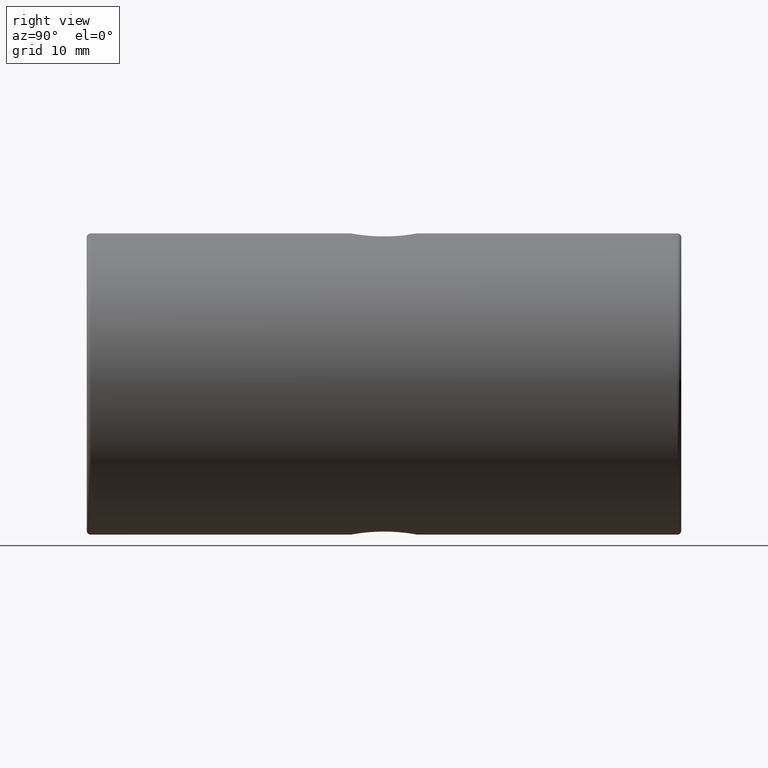
[diagram: clean part render]
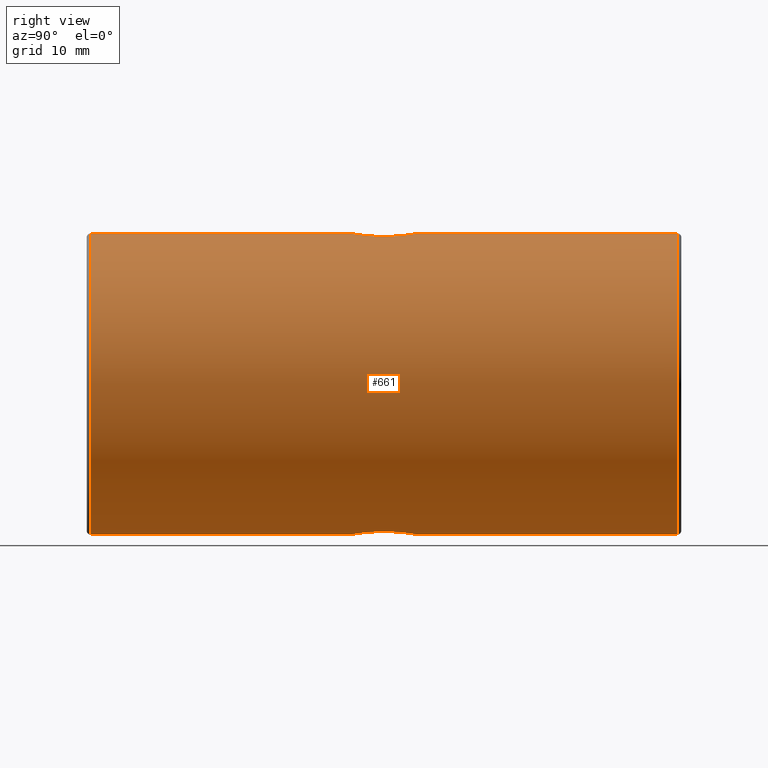
[diagram: same view with one face highlighted and labeled with its STEP entity id]
A machine part, right view. The second image highlights one B-rep face of the part: STEP entity #661.
In plain terms, the highlighted cylindrical surface (partial cylindrical patch) has radius 19 mm, axis along (-0, -1, -0).
Its self-contained STEP definition (entity closure, byte-faithful):
#4 = CARTESIAN_POINT ( 'NONE',  ( -81.59285872774556481, -5.558021363143366145, 381.3505314850146988 ) ) ;
#11 = CARTESIAN_POINT ( 'NONE',  ( -81.88335953815429491, -2.229144387579318209, 418.7039841074685000 ) ) ;
#12 = VERTEX_POINT ( 'NONE', #887 ) ;
#13 = CARTESIAN_POINT ( 'NONE',  ( -84.69972560880194123, -8.430702186240790041, 418.9944016194976939 ) ) ;
#18 = LINE ( 'NONE', #343, #165 ) ;
#19 = CARTESIAN_POINT ( 'NONE',  ( -83.24438980785724596, -7.856924346119599889, 381.1025380199827737 ) ) ;
#44 = EDGE_CURVE ( 'NONE', #324, #103, #18, .T. ) ;
#58 = CARTESIAN_POINT ( 'NONE',  ( -81.77082803723338600, -6.051458313143361245, 418.6832669197586370 ) ) ;
#69 = CARTESIAN_POINT ( 'NONE',  ( -84.18753268678749180, -0.2111030241652349648, 381.0267308325566091 ) ) ;
#70 = CARTESIAN_POINT ( 'NONE',  ( -81.41341497436532393, -4.524701080299160516, 418.6133848591761648 ) ) ;
#71 = CIRCLE ( 'NONE', #878, 19.00000000000001776 ) ;
#75 = CARTESIAN_POINT ( 'NONE',  ( -81.43586367851925445, -4.785232307264688068, 418.6180255036908306 ) ) ;
#78 = DIRECTION ( 'NONE',  ( 0.0000000000000000000, 0.0000000000000000000, 1.000000000000000000 ) ) ;
#97 = CARTESIAN_POINT ( 'NONE',  ( -84.69972560880194123, -8.430702186240790041, 381.0055983805024198 ) ) ;
#102 = CARTESIAN_POINT ( 'NONE',  ( -84.69707466841043697, -0.09239770115273915341, 418.9943257409157127 ) ) ;
#103 = VERTEX_POINT ( 'NONE', #290 ) ;
#107 = CARTESIAN_POINT ( 'NONE',  ( -84.96393248785446417, -0.06133999167429705912, 419.0000000000001705 ) ) ;
#116 = CARTESIAN_POINT ( 'NONE',  ( -85.22679983354142053, -41.26133999167427646, 400.0000000000000000 ) ) ;
#132 = DIRECTION ( 'NONE',  ( -0.0000000000000000000, -1.000000000000000000, -0.0000000000000000000 ) ) ;
#136 = VECTOR ( 'NONE', #132, 1000.000000000000000 ) ;
#140 = CARTESIAN_POINT ( 'NONE',  ( -85.22679983354142053, -8.461339991674268646, 419.0000000000000568 ) ) ;
#143 = ORIENTED_EDGE ( 'NONE', *, *, #727, .T. ) ;
#145 = CARTESIAN_POINT ( 'NONE',  ( -82.82757549099136440, -7.533607839044134558, 418.8490779973516851 ) ) ;
#150 = CARTESIAN_POINT ( 'NONE',  ( -83.94119362236200743, -0.2983445582111096117, 381.0420400455853382 ) ) ;
#154 = VERTEX_POINT ( 'NONE', #443 ) ;
#155 = CARTESIAN_POINT ( 'NONE',  ( -81.43639937781146898, -3.732814026306841892, 381.3818647936232082 ) ) ;
#156 = DIRECTION ( 'NONE',  ( -0.0000000000000000000, -1.000000000000000000, -0.0000000000000000000 ) ) ;
#158 = VERTEX_POINT ( 'NONE', #227 ) ;
#162 = CARTESIAN_POINT ( 'NONE',  ( -81.52508446630257311, -5.300719478809650553, 381.3640301049963455 ) ) ;
#165 = VECTOR ( 'NONE', #651, 1000.000000000000000 ) ;
#173 = CARTESIAN_POINT ( 'NONE',  ( -81.52508446630257311, -5.300719478809653218, 418.6359698950037682 ) ) ;
#179 = LINE ( 'NONE', #729, #710 ) ;
#180 = CARTESIAN_POINT ( 'NONE',  ( -85.22679983354142053, 33.23866000832571643, 381.0000000000000000 ) ) ;
#182 = CARTESIAN_POINT ( 'NONE',  ( -83.94119362236200743, -0.2983445582111095007, 418.9579599544148323 ) ) ;
#187 = CARTESIAN_POINT ( 'NONE',  ( -83.46511704992533964, -0.5280370949836369343, 418.9196591600729107 ) ) ;
#188 = ORIENTED_EDGE ( 'NONE', *, *, #463, .T. ) ;
#192 = CARTESIAN_POINT ( 'NONE',  ( -85.22679983354142053, -0.06133999167429880772, 419.0000000000000568 ) ) ;
#193 = ORIENTED_EDGE ( 'NONE', *, *, #434, .F. ) ;
#211 = CARTESIAN_POINT ( 'NONE',  ( -85.22679983354142053, 33.23866000832571643, 381.0000000000000000 ) ) ;
#227 = CARTESIAN_POINT ( 'NONE',  ( -85.22679983354142053, -0.06133999167429880772, 381.0000000000000000 ) ) ;
#229 = CARTESIAN_POINT ( 'NONE',  ( -84.96243902164792416, -8.461339991674275751, 419.0000000000001137 ) ) ;
#230 = EDGE_CURVE ( 'NONE', #452, #154, #71, .T. ) ;
#234 = CARTESIAN_POINT ( 'NONE',  ( -83.24199987212081453, -0.6676668308104372063, 381.1028212990075872 ) ) ;
#235 = CARTESIAN_POINT ( 'NONE',  ( -81.59285872774556481, -5.558021363143371474, 418.6494685149854149 ) ) ;
#238 = B_SPLINE_CURVE_WITH_KNOTS ( 'NONE', 3,
 ( #803, #267, #97, #417, #652, #883, #19, #344, #571, #1003, #938, #395, #250, #4, #162, #562, #326, #385 ),
 .UNSPECIFIED., .F., .F.,
 ( 4, 2, 2, 2, 2, 2, 2, 2, 4 ),
 ( 0.003733624680294762854, 0.004520577988407363350, 0.005307531296519963845, 0.006094484604632565208, 0.006881437912745166571, 0.007668391220857769669, 0.008455344528970371032, 0.009242297837082972395, 0.01002925114519557549 ),
 .UNSPECIFIED. ) ;
#240 = CARTESIAN_POINT ( 'NONE',  ( -81.59279953389886941, -2.964568543362572584, 381.3505402671659681 ) ) ;
#250 = CARTESIAN_POINT ( 'NONE',  ( -81.77082803723338600, -6.051458313143355028, 381.3167330802414767 ) ) ;
#259 = CARTESIAN_POINT ( 'NONE',  ( -83.24438980785724596, -7.856924346119599889, 418.8974619800173400 ) ) ;
#267 = CARTESIAN_POINT ( 'NONE',  ( -84.96243902164792416, -8.461339991674275751, 381.0000000000000568 ) ) ;
#290 = CARTESIAN_POINT ( 'NONE',  ( -85.22679983354142053, -41.26133999167427646, 419.0000000000000568 ) ) ;
#294 = VERTEX_POINT ( 'NONE', #870 ) ;
#306 = CIRCLE ( 'NONE', #461, 19.00000000000001776 ) ;
#308 = CARTESIAN_POINT ( 'NONE',  ( -82.14497683168241338, -1.778754477084883101, 381.2511338613114162 ) ) ;
#324 = VERTEX_POINT ( 'NONE', #707 ) ;
#326 = CARTESIAN_POINT ( 'NONE',  ( -81.41341497436532393, -4.524701080299158740, 381.3866151408239489 ) ) ;
#329 = CYLINDRICAL_SURFACE ( 'NONE', #809, 19.00000000000001776 ) ;
#337 = CARTESIAN_POINT ( 'NONE',  ( -84.18986350246656514, -8.312315706571794749, 418.9733988301109093 ) ) ;
#342 = CARTESIAN_POINT ( 'NONE',  ( -83.24199987212080032, -0.6676668308104377614, 418.8971787009924697 ) ) ;
#343 = CARTESIAN_POINT ( 'NONE',  ( -85.22679983354142053, 33.23866000832571643, 419.0000000000000568 ) ) ;
#344 = CARTESIAN_POINT ( 'NONE',  ( -82.82757549099136440, -7.533607839044134558, 381.1509220026484286 ) ) ;
#347 = CARTESIAN_POINT ( 'NONE',  ( -82.29571650229409840, -1.565921010254242685, 418.7733634629371409 ) ) ;
#375 = VERTEX_POINT ( 'NONE', #965 ) ;
#385 = CARTESIAN_POINT ( 'NONE',  ( -81.41341497436532393, -4.261339991674277350, 381.3866151408238920 ) ) ;
#395 = CARTESIAN_POINT ( 'NONE',  ( -81.88059113652985843, -6.288202399889226690, 381.2965077447454973 ) ) ;
#400 = CARTESIAN_POINT ( 'NONE',  ( -85.22679983354142053, 32.73866000832571643, 400.0000000000000000 ) ) ;
#415 = CARTESIAN_POINT ( 'NONE',  ( -82.83102515499484753, -0.9863390833895698817, 418.8494842750069438 ) ) ;
#417 = CARTESIAN_POINT ( 'NONE',  ( -84.18986350246656514, -8.312315706571794749, 381.0266011698889201 ) ) ;
#418 = DIRECTION ( 'NONE',  ( -0.0000000000000000000, -1.000000000000000000, -0.0000000000000000000 ) ) ;
#426 = VERTEX_POINT ( 'NONE', #584 ) ;
#434 = EDGE_CURVE ( 'NONE', #426, #491, #523, .T. ) ;
#443 = CARTESIAN_POINT ( 'NONE',  ( -85.22679983354142053, 32.73866000832571643, 419.0000000000000568 ) ) ;
#452 = VERTEX_POINT ( 'NONE', #687 ) ;
#454 = VECTOR ( 'NONE', #418, 1000.000000000000000 ) ;
#459 = CARTESIAN_POINT ( 'NONE',  ( -85.22679983354142053, 33.23866000832571643, 400.0000000000000000 ) ) ;
#460 = DIRECTION ( 'NONE',  ( 0.0000000000000000000, 1.000000000000000000, 0.0000000000000000000 ) ) ;
#461 = AXIS2_PLACEMENT_3D ( 'NONE', #116, #460, #978 ) ;
#463 = EDGE_CURVE ( 'NONE', #103, #294, #306, .T. ) ;
#465 = CARTESIAN_POINT ( 'NONE',  ( -83.93808702169893365, -8.222923423920713404, 418.9577223027167747 ) ) ;
#468 = DIRECTION ( 'NONE',  ( 0.0000000000000000000, 0.0000000000000000000, -1.000000000000000000 ) ) ;
#472 = CARTESIAN_POINT ( 'NONE',  ( -84.96393248785444996, -0.06133999167429707300, 381.0000000000000000 ) ) ;
#479 = ORIENTED_EDGE ( 'NONE', *, *, #230, .T. ) ;
#489 = CARTESIAN_POINT ( 'NONE',  ( -81.41341497436532393, -4.261339991674279126, 418.6133848591761648 ) ) ;
#491 = VERTEX_POINT ( 'NONE', #833 ) ;
#495 = CARTESIAN_POINT ( 'NONE',  ( -81.41341497436532393, -3.997586484548957486, 418.6133848591761648 ) ) ;
#497 = DIRECTION ( 'NONE',  ( -0.0000000000000000000, -1.000000000000000000, -0.0000000000000000000 ) ) ;
#499 = CARTESIAN_POINT ( 'NONE',  ( -84.18753268678747759, -0.2111030241652349926, 418.9732691674435046 ) ) ;
#523 = B_SPLINE_CURVE_WITH_KNOTS ( 'NONE', 3,
 ( #489, #495, #732, #886, #720, #893, #11, #801, #347, #654, #415, #342, #187, #182, #499, #102, #107, #192 ),
 .UNSPECIFIED., .F., .F.,
 ( 4, 2, 2, 2, 2, 2, 2, 2, 4 ),
 ( 0.01002925114519557376, 0.01081737704504791807, 0.01160550294490026065, 0.01239362884475260496, 0.01318175474460494753, 0.01396988064445729011, 0.01475800654430963268, 0.01554613244416197526, 0.01633425834401431784 ),
 .UNSPECIFIED. ) ;
#536 = CARTESIAN_POINT ( 'NONE',  ( -82.29671814351611658, -6.957786961682561611, 418.7735023986901979 ) ) ;
#562 = CARTESIAN_POINT ( 'NONE',  ( -81.43586367851925445, -4.785232307264686291, 381.3819744963091694 ) ) ;
#571 = CARTESIAN_POINT ( 'NONE',  ( -82.63814515825626472, -7.352595677616392322, 381.1763808475635642 ) ) ;
#572 = LINE ( 'NONE', #180, #454 ) ;
#584 = CARTESIAN_POINT ( 'NONE',  ( -81.41341497436532393, -4.261339991674279126, 418.6133848591761648 ) ) ;
#594 = EDGE_CURVE ( 'NONE', #375, #294, #907, .T. ) ;
#633 = CARTESIAN_POINT ( 'NONE',  ( -82.83102515499486174, -0.9863390833895689935, 381.1505157249931699 ) ) ;
#638 = ORIENTED_EDGE ( 'NONE', *, *, #668, .F. ) ;
#645 = CARTESIAN_POINT ( 'NONE',  ( -82.63814515825626472, -7.352595677616392322, 418.8236191524364926 ) ) ;
#646 = B_SPLINE_CURVE_WITH_KNOTS ( 'NONE', 3,
 ( #872, #709, #155, #701, #240, #867, #1007, #308, #926, #706, #633, #234, #855, #150, #69, #859, #472, #781 ),
 .UNSPECIFIED., .F., .F.,
 ( 4, 2, 2, 2, 2, 2, 2, 2, 4 ),
 ( 0.01002925114519557549, 0.01081737704504791807, 0.01160550294490026065, 0.01239362884475260496, 0.01318175474460494753, 0.01396988064445729011, 0.01475800654430963268, 0.01554613244416197526, 0.01633425834401431784 ),
 .UNSPECIFIED. ) ;
#651 = DIRECTION ( 'NONE',  ( -0.0000000000000000000, -1.000000000000000000, -0.0000000000000000000 ) ) ;
#652 = CARTESIAN_POINT ( 'NONE',  ( -83.93808702169893365, -8.222923423920713404, 381.0422776972831116 ) ) ;
#654 = CARTESIAN_POINT ( 'NONE',  ( -82.64087668775827922, -1.167056617506570415, 418.8240119711596208 ) ) ;
#661 = ADVANCED_FACE ( 'NONE', ( #952 ), #329, .T. ) ;
#667 = ORIENTED_EDGE ( 'NONE', *, *, #776, .T. ) ;
#668 = EDGE_CURVE ( 'NONE', #324, #426, #783, .T. ) ;
#673 = ORIENTED_EDGE ( 'NONE', *, *, #594, .F. ) ;
#687 = CARTESIAN_POINT ( 'NONE',  ( -85.22679983354142053, 32.73866000832571643, 381.0000000000000000 ) ) ;
#701 = CARTESIAN_POINT ( 'NONE',  ( -81.52612773688034054, -3.217498801581724077, 381.3638222746528754 ) ) ;
#704 = DIRECTION ( 'NONE',  ( -0.0000000000000000000, -1.000000000000000000, -0.0000000000000000000 ) ) ;
#705 = ORIENTED_EDGE ( 'NONE', *, *, #44, .T. ) ;
#706 = CARTESIAN_POINT ( 'NONE',  ( -82.64087668775829343, -1.167056617506569971, 381.1759880288403792 ) ) ;
#707 = CARTESIAN_POINT ( 'NONE',  ( -85.22679983354142053, -8.461339991674268646, 419.0000000000000568 ) ) ;
#709 = CARTESIAN_POINT ( 'NONE',  ( -81.41341497436533814, -3.997586484548954822, 381.3866151408237783 ) ) ;
#710 = VECTOR ( 'NONE', #497, 1000.000000000000000 ) ;
#717 = CARTESIAN_POINT ( 'NONE',  ( -81.88059113652985843, -6.288202399889226690, 418.7034922552546163 ) ) ;
#720 = CARTESIAN_POINT ( 'NONE',  ( -81.59279953389886941, -2.964568543362574360, 418.6494597328340888 ) ) ;
#727 = EDGE_CURVE ( 'NONE', #154, #491, #179, .T. ) ;
#729 = CARTESIAN_POINT ( 'NONE',  ( -85.22679983354142053, 33.23866000832571643, 419.0000000000000568 ) ) ;
#731 = EDGE_CURVE ( 'NONE', #375, #12, #238, .T. ) ;
#732 = CARTESIAN_POINT ( 'NONE',  ( -81.43639937781144056, -3.732814026306843225, 418.6181352063767918 ) ) ;
#766 = ORIENTED_EDGE ( 'NONE', *, *, #731, .T. ) ;
#776 = EDGE_CURVE ( 'NONE', #12, #158, #646, .T. ) ;
#781 = CARTESIAN_POINT ( 'NONE',  ( -85.22679983354142053, -0.06133999167429880772, 381.0000000000000000 ) ) ;
#782 = CARTESIAN_POINT ( 'NONE',  ( -82.14309753980985818, -6.741247472261910012, 418.7485603540634429 ) ) ;
#783 = B_SPLINE_CURVE_WITH_KNOTS ( 'NONE', 3,
 ( #140, #229, #13, #337, #465, #856, #259, #145, #645, #536, #782, #717, #58, #235, #173, #75, #70, #927 ),
 .UNSPECIFIED., .F., .F.,
 ( 4, 2, 2, 2, 2, 2, 2, 2, 4 ),
 ( 0.003733624680294762854, 0.004520577988407363350, 0.005307531296519963845, 0.006094484604632564341, 0.006881437912745166571, 0.007668391220857767934, 0.008455344528970369297, 0.009242297837082972395, 0.01002925114519557376 ),
 .UNSPECIFIED. ) ;
#800 = EDGE_CURVE ( 'NONE', #452, #158, #572, .T. ) ;
#801 = CARTESIAN_POINT ( 'NONE',  ( -82.14497683168238495, -1.778754477084894647, 418.7488661386886406 ) ) ;
#803 = CARTESIAN_POINT ( 'NONE',  ( -85.22679983354142053, -8.461339991674268646, 381.0000000000000000 ) ) ;
#809 = AXIS2_PLACEMENT_3D ( 'NONE', #459, #156, #468 ) ;
#814 = ORIENTED_EDGE ( 'NONE', *, *, #800, .F. ) ;
#833 = CARTESIAN_POINT ( 'NONE',  ( -85.22679983354142053, -0.06133999167429880772, 419.0000000000000568 ) ) ;
#855 = CARTESIAN_POINT ( 'NONE',  ( -83.46511704992532543, -0.5280370949836370453, 381.0803408399271461 ) ) ;
#856 = CARTESIAN_POINT ( 'NONE',  ( -83.46626106639050136, -7.995107640163255702, 418.9197388689088370 ) ) ;
#859 = CARTESIAN_POINT ( 'NONE',  ( -84.69707466841040855, -0.09239770115273913953, 381.0056742590844578 ) ) ;
#867 = CARTESIAN_POINT ( 'NONE',  ( -81.77187972696631846, -2.468561370532884602, 381.3165358254529451 ) ) ;
#870 = CARTESIAN_POINT ( 'NONE',  ( -85.22679983354142053, -41.26133999167427646, 381.0000000000000000 ) ) ;
#872 = CARTESIAN_POINT ( 'NONE',  ( -81.41341497436532393, -4.261339991674277350, 381.3866151408238920 ) ) ;
#878 = AXIS2_PLACEMENT_3D ( 'NONE', #400, #704, #78 ) ;
#882 = EDGE_LOOP ( 'NONE', ( #479, #143, #193, #638, #705, #188, #673, #766, #667, #814 ) ) ;
#883 = CARTESIAN_POINT ( 'NONE',  ( -83.46626106639050136, -7.995107640163255702, 381.0802611310913903 ) ) ;
#886 = CARTESIAN_POINT ( 'NONE',  ( -81.52612773688036896, -3.217498801581725854, 418.6361777253471814 ) ) ;
#887 = CARTESIAN_POINT ( 'NONE',  ( -81.41341497436532393, -4.261339991674277350, 381.3866151408238920 ) ) ;
#893 = CARTESIAN_POINT ( 'NONE',  ( -81.77187972696634688, -2.468561370532886379, 418.6834641745472823 ) ) ;
#907 = LINE ( 'NONE', #211, #136 ) ;
#926 = CARTESIAN_POINT ( 'NONE',  ( -82.29571650229409840, -1.565921010254241796, 381.2266365370629160 ) ) ;
#927 = CARTESIAN_POINT ( 'NONE',  ( -81.41341497436532393, -4.261339991674279126, 418.6133848591761648 ) ) ;
#938 = CARTESIAN_POINT ( 'NONE',  ( -82.14309753980985818, -6.741247472261910012, 381.2514396459365571 ) ) ;
#952 = FACE_OUTER_BOUND ( 'NONE', #882, .T. ) ;
#965 = CARTESIAN_POINT ( 'NONE',  ( -85.22679983354142053, -8.461339991674268646, 381.0000000000000000 ) ) ;
#978 = DIRECTION ( 'NONE',  ( 0.0000000000000000000, 0.0000000000000000000, 1.000000000000000000 ) ) ;
#1003 = CARTESIAN_POINT ( 'NONE',  ( -82.29671814351611658, -6.957786961682561611, 381.2264976013096884 ) ) ;
#1007 = CARTESIAN_POINT ( 'NONE',  ( -81.88335953815429491, -2.229144387579305775, 381.2960158925316705 ) ) ;